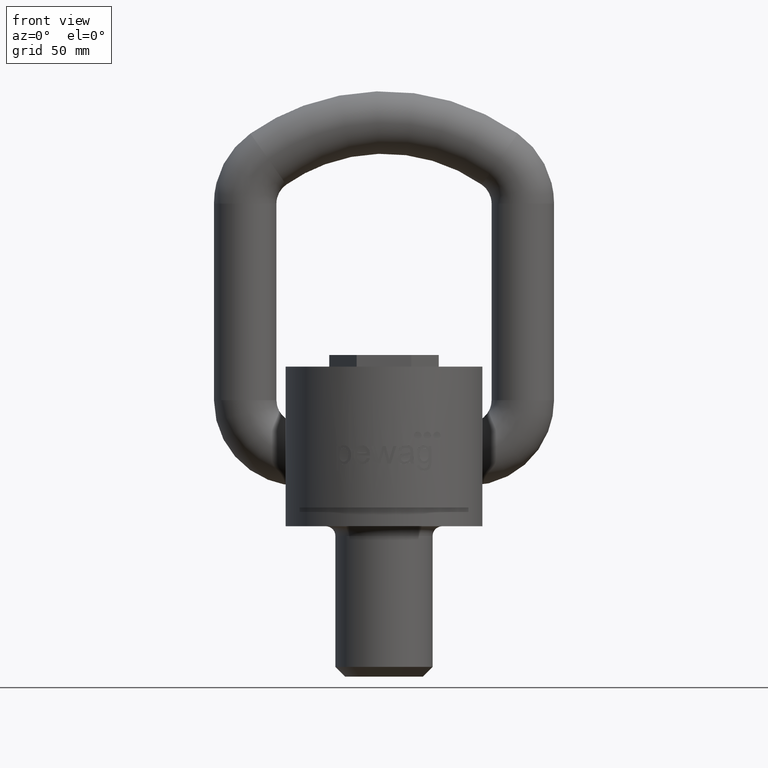
[diagram: clean part render]
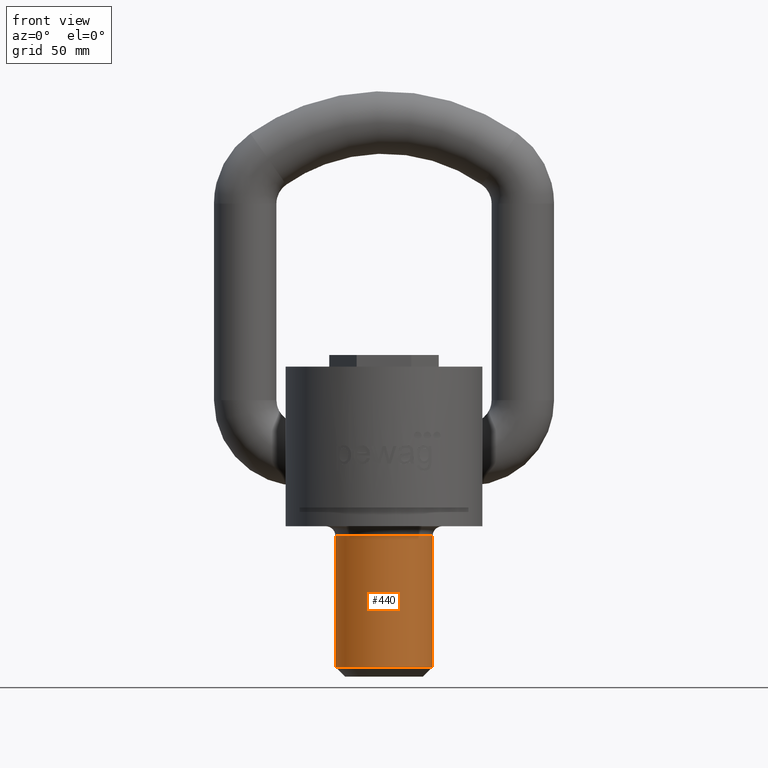
[diagram: same view with one face highlighted and labeled with its STEP entity id]
A machine part, front view. The second image highlights one B-rep face of the part: STEP entity #440.
In plain terms, the highlighted cylindrical surface (bore or boss wall) has radius 21 mm, axis along (0, 0, 1).
Its self-contained STEP definition (entity closure, byte-faithful):
#440=ADVANCED_FACE('',(#597,#598),#549,.T.);
#549=CYLINDRICAL_SURFACE('',#2531,21.);
#597=FACE_BOUND('',#674,.T.);
#598=FACE_BOUND('',#675,.T.);
#674=EDGE_LOOP('',(#1329));
#675=EDGE_LOOP('',(#1330));
#1129=CIRCLE('',#2529,21.);
#1130=CIRCLE('',#2530,21.);
#1329=ORIENTED_EDGE('',*,*,#2105,.T.);
#1330=ORIENTED_EDGE('',*,*,#2106,.T.);
#1872=VERTEX_POINT('',#3879);
#1873=VERTEX_POINT('',#3881);
#2105=EDGE_CURVE('',#1872,#1872,#1129,.T.);
#2106=EDGE_CURVE('',#1873,#1873,#1130,.T.);
#2529=AXIS2_PLACEMENT_3D('',#3878,#2789,#2790);
#2530=AXIS2_PLACEMENT_3D('',#3880,#2791,#2792);
#2531=AXIS2_PLACEMENT_3D('',#3882,#2793,#2794);
#2789=DIRECTION('',(0.,0.,1.));
#2790=DIRECTION('',(-1.,0.,0.));
#2791=DIRECTION('',(0.,0.,-1.));
#2792=DIRECTION('',(-1.,0.,0.));
#2793=DIRECTION('',(0.,0.,1.));
#2794=DIRECTION('',(1.,0.,0.));
#3878=CARTESIAN_POINT('',(0.,0.,-68.7999999999999));
#3879=CARTESIAN_POINT('',(-21.,0.,-68.7999999999999));
#3880=CARTESIAN_POINT('',(0.,0.,-12.1999999999999));
#3881=CARTESIAN_POINT('',(-21.,0.,-12.1999999999999));
#3882=CARTESIAN_POINT('',(0.,0.,-72.9999999999999));